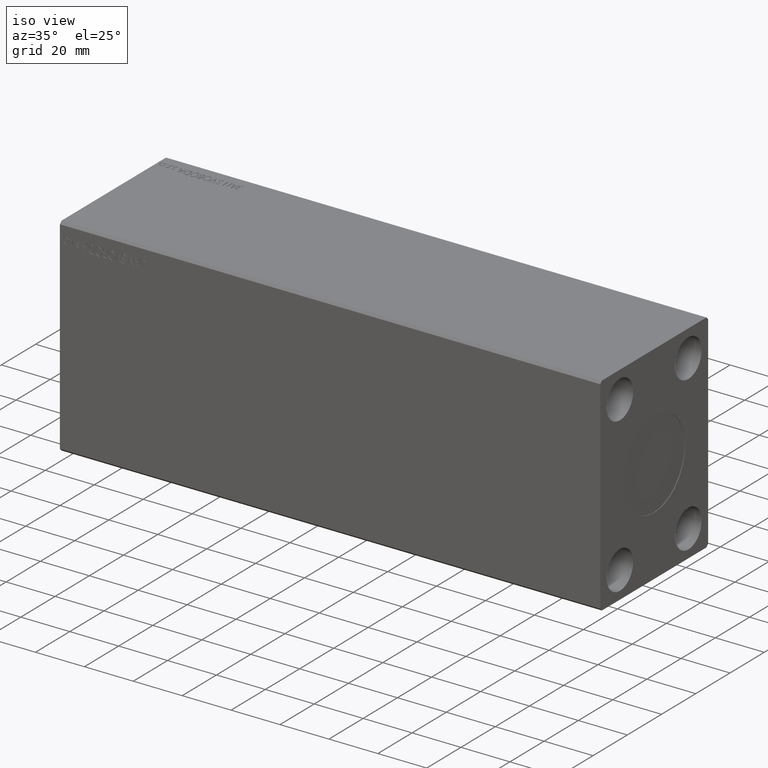
[diagram: clean part render]
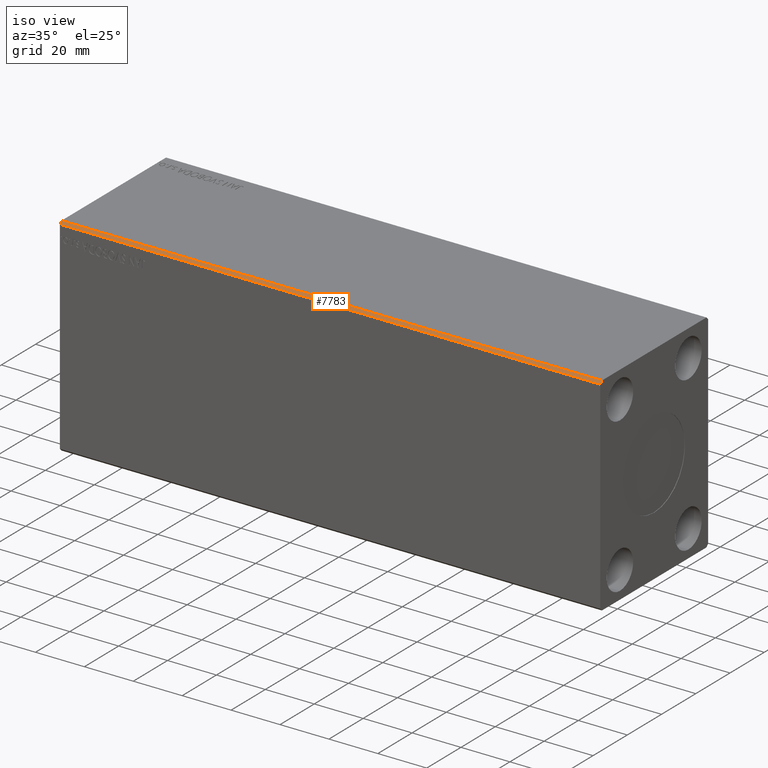
[diagram: same view with one face highlighted and labeled with its STEP entity id]
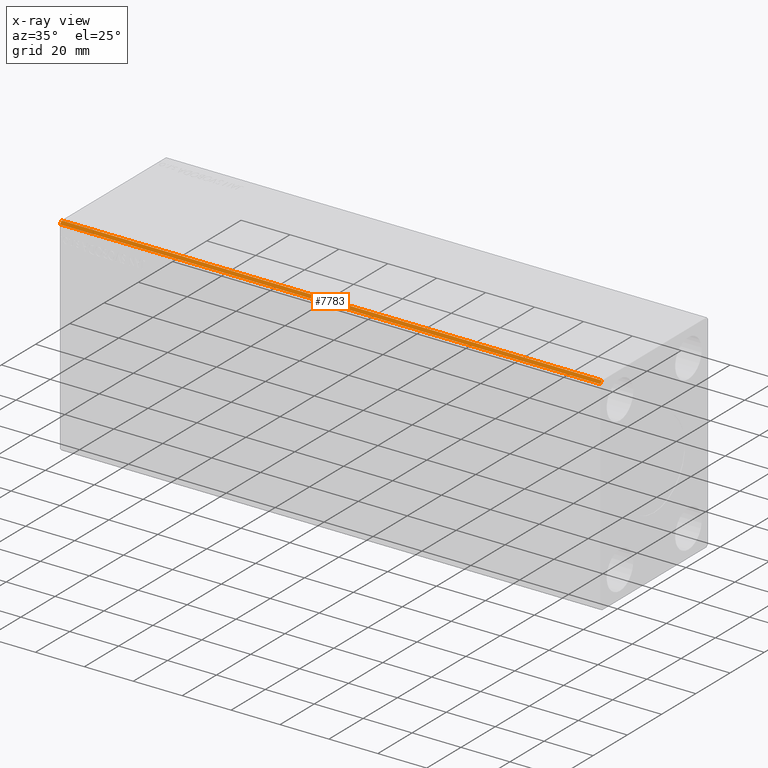
[diagram: x-ray of the same camera — body ghosted, the highlighted face saturated]
A machine part, iso view. The second image highlights one B-rep face of the part: STEP entity #7783.
The next image is the same camera in x-ray: the body ghosted, the highlighted face saturated — about 0% of this face is hidden behind the body in this view.
In plain terms, the highlighted planar face has unit normal (0, 0.7071, -0.7071).
Its self-contained STEP definition (entity closure, byte-faithful):
#758 = EDGE_CURVE ( 'NONE', #4965, #18601, #36781, .T. ) ;
#1242 = ORIENTED_EDGE ( 'NONE', *, *, #36444, .T. ) ;
#1303 = VECTOR ( 'NONE', #6004, 999.9999999999998863 ) ;
#3540 = FACE_OUTER_BOUND ( 'NONE', #28348, .T. ) ;
#4621 = CARTESIAN_POINT ( 'NONE',  ( 221.0000000000000000, -31.50000000000000000, 41.49999999999999289 ) ) ;
#4674 = DIRECTION ( 'NONE',  ( -1.000000000000000000, -0.000000000000000000, -0.000000000000000000 ) ) ;
#4965 = VERTEX_POINT ( 'NONE', #8391 ) ;
#5168 = VERTEX_POINT ( 'NONE', #40986 ) ;
#5958 = CARTESIAN_POINT ( 'NONE',  ( 221.0000000000000000, -30.50000000000000355, 42.49999999999999289 ) ) ;
#6004 = DIRECTION ( 'NONE',  ( 0.000000000000000000, -0.7071067811865462405, -0.7071067811865489050 ) ) ;
#6930 = CARTESIAN_POINT ( 'NONE',  ( 221.0000000000000000, -30.50000000000000355, 42.49999999999999289 ) ) ;
#7783 = ADVANCED_FACE ( 'NONE', ( #3540 ), #9759, .F. ) ;
#8391 = CARTESIAN_POINT ( 'NONE',  ( 221.0000000000000000, -30.50000000000000355, 42.49999999999999289 ) ) ;
#9759 = PLANE ( 'NONE',  #16038 ) ;
#10412 = VECTOR ( 'NONE', #23474, 1000.000000000000000 ) ;
#11322 = CARTESIAN_POINT ( 'NONE',  ( 221.0000000000000000, -31.50000000000000000, 41.49999999999999289 ) ) ;
#13073 = CARTESIAN_POINT ( 'NONE',  ( 0.000000000000000000, -30.50000000000000355, 42.49999999999999289 ) ) ;
#14349 = CARTESIAN_POINT ( 'NONE',  ( 0.000000000000000000, -30.50000000000000355, 42.49999999999999289 ) ) ;
#14656 = VERTEX_POINT ( 'NONE', #4621 ) ;
#16038 = AXIS2_PLACEMENT_3D ( 'NONE', #16863, #20295, #16648 ) ;
#16648 = DIRECTION ( 'NONE',  ( 0.000000000000000000, 0.7071067811865462405, 0.7071067811865489050 ) ) ;
#16863 = CARTESIAN_POINT ( 'NONE',  ( 221.0000000000000000, -30.50000000000000355, 42.49999999999999289 ) ) ;
#17910 = ORIENTED_EDGE ( 'NONE', *, *, #21835, .F. ) ;
#18601 = VERTEX_POINT ( 'NONE', #14349 ) ;
#20295 = DIRECTION ( 'NONE',  ( 0.000000000000000000, 0.7071067811865489050, -0.7071067811865462405 ) ) ;
#21420 = LINE ( 'NONE', #11322, #26593 ) ;
#21835 = EDGE_CURVE ( 'NONE', #14656, #5168, #21420, .T. ) ;
#23474 = DIRECTION ( 'NONE',  ( -1.000000000000000000, -0.000000000000000000, -0.000000000000000000 ) ) ;
#24874 = DIRECTION ( 'NONE',  ( 0.000000000000000000, -0.7071067811865462405, -0.7071067811865489050 ) ) ;
#26593 = VECTOR ( 'NONE', #4674, 1000.000000000000000 ) ;
#27133 = EDGE_CURVE ( 'NONE', #4965, #14656, #31525, .T. ) ;
#28348 = EDGE_LOOP ( 'NONE', ( #1242, #17910, #30560, #36905 ) ) ;
#30560 = ORIENTED_EDGE ( 'NONE', *, *, #27133, .F. ) ;
#31525 = LINE ( 'NONE', #5958, #34135 ) ;
#34135 = VECTOR ( 'NONE', #24874, 999.9999999999998863 ) ;
#36444 = EDGE_CURVE ( 'NONE', #18601, #5168, #42292, .T. ) ;
#36781 = LINE ( 'NONE', #6930, #10412 ) ;
#36905 = ORIENTED_EDGE ( 'NONE', *, *, #758, .T. ) ;
#40986 = CARTESIAN_POINT ( 'NONE',  ( 0.000000000000000000, -31.50000000000000000, 41.49999999999999289 ) ) ;
#42292 = LINE ( 'NONE', #13073, #1303 ) ;